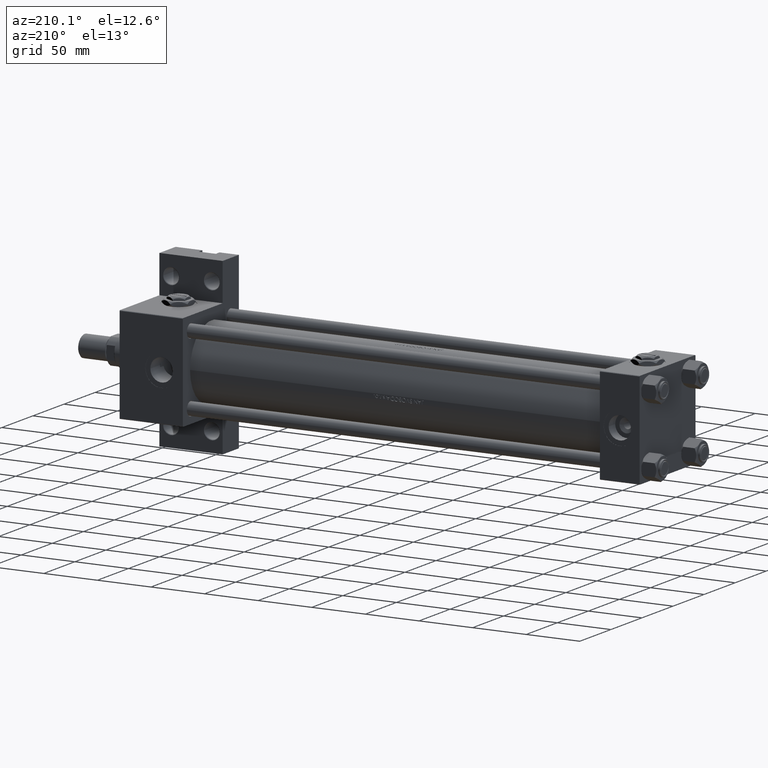
[diagram: clean part render]
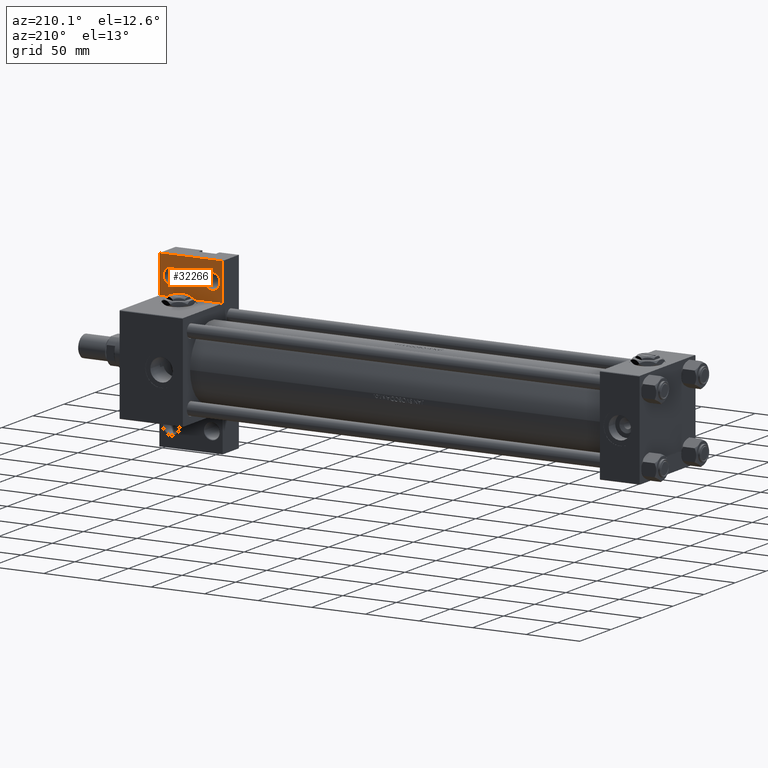
[diagram: same view with one face highlighted and labeled with its STEP entity id]
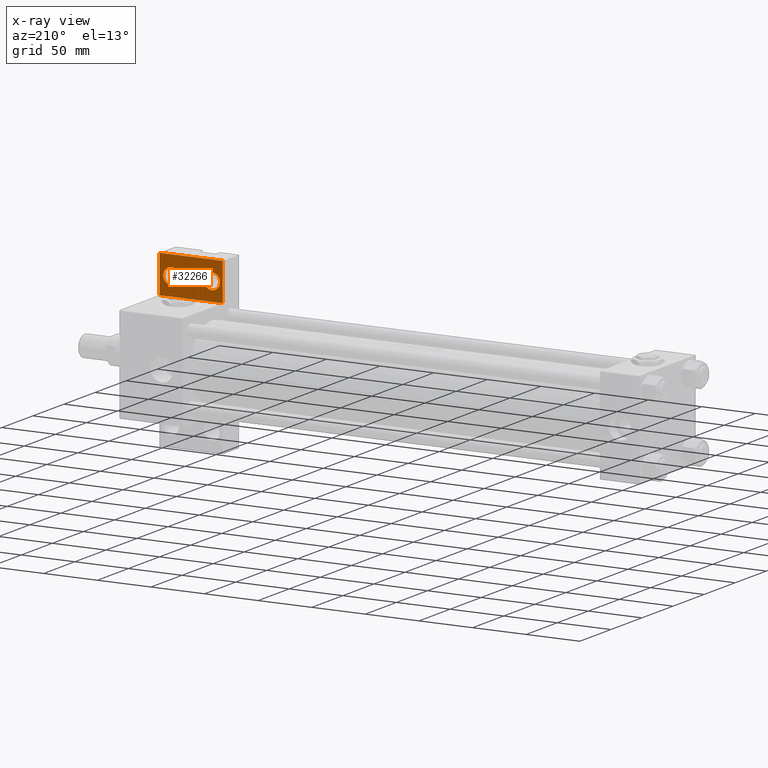
[diagram: x-ray of the same camera — body ghosted, the highlighted face saturated]
A machine part, auxiliary view. The second image highlights one B-rep face of the part: STEP entity #32266.
The next image is the same camera in x-ray: the body ghosted, the highlighted face saturated — about 0% of this face is hidden behind the body in this view.
In plain terms, the highlighted planar face has unit normal (0, -1, 0).
Its self-contained STEP definition (entity closure, byte-faithful):
#1142 = DIRECTION ( 'NONE',  ( -1.000000000000000000, 0.000000000000000000, 0.000000000000000000 ) ) ;
#2783 = CARTESIAN_POINT ( 'NONE',  ( 443.4995000000001255, -62.00000000000004263, -19.00000000000000000 ) ) ;
#6337 = VECTOR ( 'NONE', #31914, 1000.000000000000000 ) ;
#6548 = VERTEX_POINT ( 'NONE', #2783 ) ;
#7110 = LINE ( 'NONE', #40866, #15723 ) ;
#7149 = VERTEX_POINT ( 'NONE', #42166 ) ;
#7151 = CARTESIAN_POINT ( 'NONE',  ( 474.0000000000000000, -62.00000000000000000, -19.00000000000000000 ) ) ;
#8153 = DIRECTION ( 'NONE',  ( -1.000000000000000000, 0.000000000000000000, 0.000000000000000000 ) ) ;
#8537 = ORIENTED_EDGE ( 'NONE', *, *, #11339, .T. ) ;
#9088 = EDGE_CURVE ( 'NONE', #7149, #18389, #26535, .T. ) ;
#9425 = AXIS2_PLACEMENT_3D ( 'NONE', #47783, #13019, #28529 ) ;
#9837 = DIRECTION ( 'NONE',  ( -0.000000000000000000, -1.000000000000000000, -0.000000000000000000 ) ) ;
#10051 = EDGE_CURVE ( 'NONE', #31769, #7149, #10340, .T. ) ;
#10292 = CARTESIAN_POINT ( 'NONE',  ( 436.0000000000000000, -62.00000000000004263, -19.00000000000000000 ) ) ;
#10323 = ORIENTED_EDGE ( 'NONE', *, *, #17102, .T. ) ;
#10340 = LINE ( 'NONE', #25847, #41611 ) ;
#10702 = EDGE_CURVE ( 'NONE', #18389, #35763, #7110, .T. ) ;
#11339 = EDGE_CURVE ( 'NONE', #6548, #28707, #40017, .T. ) ;
#11546 = CARTESIAN_POINT ( 'NONE',  ( 481.4995000000000687, -62.00000000000000000, -19.00000000000000000 ) ) ;
#12018 = FACE_BOUND ( 'NONE', #41086, .T. ) ;
#12561 = CARTESIAN_POINT ( 'NONE',  ( 466.5004999999998745, -62.00000000000000000, -19.00000000000000000 ) ) ;
#12794 = CARTESIAN_POINT ( 'NONE',  ( 436.0000000000000000, -62.00000000000004263, -19.00000000000000000 ) ) ;
#13019 = DIRECTION ( 'NONE',  ( 0.000000000000000000, 0.000000000000000000, -1.000000000000000000 ) ) ;
#15723 = VECTOR ( 'NONE', #29483, 1000.000000000000000 ) ;
#16109 = DIRECTION ( 'NONE',  ( 0.000000000000000000, 0.000000000000000000, -1.000000000000000000 ) ) ;
#16225 = ORIENTED_EDGE ( 'NONE', *, *, #10702, .F. ) ;
#17067 = CIRCLE ( 'NONE', #37314, 7.499500000000103306 ) ;
#17102 = EDGE_CURVE ( 'NONE', #47704, #33093, #39833, .T. ) ;
#17511 = DIRECTION ( 'NONE',  ( 0.000000000000000000, 0.000000000000000000, -1.000000000000000000 ) ) ;
#18389 = VERTEX_POINT ( 'NONE', #38825 ) ;
#18835 = DIRECTION ( 'NONE',  ( 0.000000000000000000, 0.000000000000000000, -1.000000000000000000 ) ) ;
#18975 = EDGE_LOOP ( 'NONE', ( #8537, #48087 ) ) ;
#19916 = EDGE_CURVE ( 'NONE', #33093, #47704, #42341, .T. ) ;
#24199 = FACE_OUTER_BOUND ( 'NONE', #46754, .T. ) ;
#25207 = ORIENTED_EDGE ( 'NONE', *, *, #10051, .F. ) ;
#25361 = AXIS2_PLACEMENT_3D ( 'NONE', #33244, #17511, #40601 ) ;
#25847 = CARTESIAN_POINT ( 'NONE',  ( 485.0000000000000000, -80.00000000000005684, -19.00000000000000000 ) ) ;
#26087 = ORIENTED_EDGE ( 'NONE', *, *, #9088, .F. ) ;
#26535 = LINE ( 'NONE', #27043, #39940 ) ;
#27043 = CARTESIAN_POINT ( 'NONE',  ( 426.0000000000000000, -80.00000000000004263, -19.00000000000000000 ) ) ;
#27619 = LINE ( 'NONE', #31426, #6337 ) ;
#27826 = CARTESIAN_POINT ( 'NONE',  ( 426.0000000000000000, -45.00000000000000000, -19.00000000000000000 ) ) ;
#28529 = DIRECTION ( 'NONE',  ( -1.000000000000000000, 0.000000000000000000, -0.000000000000000000 ) ) ;
#28707 = VERTEX_POINT ( 'NONE', #42210 ) ;
#29483 = DIRECTION ( 'NONE',  ( 0.000000000000000000, 1.000000000000000000, 0.000000000000000000 ) ) ;
#29890 = CARTESIAN_POINT ( 'NONE',  ( 485.0000000000000000, -44.99999999999999289, -18.99999999999997513 ) ) ;
#31152 = AXIS2_PLACEMENT_3D ( 'NONE', #10292, #36689, #44802 ) ;
#31426 = CARTESIAN_POINT ( 'NONE',  ( 426.0000000000000000, -45.00000000000000000, -19.00000000000000000 ) ) ;
#31769 = VERTEX_POINT ( 'NONE', #29890 ) ;
#31914 = DIRECTION ( 'NONE',  ( 1.000000000000000000, 0.000000000000000000, 0.000000000000000000 ) ) ;
#32266 = ADVANCED_FACE ( 'NONE', ( #12018, #47274, #24199 ), #32323, .F. ) ;
#32323 = PLANE ( 'NONE',  #9425 ) ;
#33093 = VERTEX_POINT ( 'NONE', #11546 ) ;
#33244 = CARTESIAN_POINT ( 'NONE',  ( 474.0000000000000000, -62.00000000000000000, -19.00000000000000000 ) ) ;
#35763 = VERTEX_POINT ( 'NONE', #27826 ) ;
#36689 = DIRECTION ( 'NONE',  ( 0.000000000000000000, 0.000000000000000000, -1.000000000000000000 ) ) ;
#37314 = AXIS2_PLACEMENT_3D ( 'NONE', #12794, #16109, #1142 ) ;
#37339 = EDGE_CURVE ( 'NONE', #35763, #31769, #27619, .T. ) ;
#38825 = CARTESIAN_POINT ( 'NONE',  ( 426.0000000000000000, -80.00000000000004263, -19.00000000000000000 ) ) ;
#39598 = ORIENTED_EDGE ( 'NONE', *, *, #19916, .T. ) ;
#39833 = CIRCLE ( 'NONE', #40655, 7.499500000000103306 ) ;
#39940 = VECTOR ( 'NONE', #41988, 1000.000000000000000 ) ;
#40017 = CIRCLE ( 'NONE', #31152, 7.499500000000103306 ) ;
#40601 = DIRECTION ( 'NONE',  ( -1.000000000000000000, 0.000000000000000000, 0.000000000000000000 ) ) ;
#40655 = AXIS2_PLACEMENT_3D ( 'NONE', #7151, #18835, #8153 ) ;
#40866 = CARTESIAN_POINT ( 'NONE',  ( 426.0000000000000000, -80.00000000000004263, -19.00000000000000000 ) ) ;
#41086 = EDGE_LOOP ( 'NONE', ( #39598, #10323 ) ) ;
#41593 = EDGE_CURVE ( 'NONE', #28707, #6548, #17067, .T. ) ;
#41611 = VECTOR ( 'NONE', #9837, 1000.000000000000000 ) ;
#41988 = DIRECTION ( 'NONE',  ( -1.000000000000000000, 2.352167425053297897E-16, -0.000000000000000000 ) ) ;
#42166 = CARTESIAN_POINT ( 'NONE',  ( 485.0000000000000000, -80.00000000000005684, -19.00000000000000000 ) ) ;
#42210 = CARTESIAN_POINT ( 'NONE',  ( 428.5004999999998745, -62.00000000000004263, -19.00000000000000000 ) ) ;
#42341 = CIRCLE ( 'NONE', #25361, 7.499500000000103306 ) ;
#44802 = DIRECTION ( 'NONE',  ( -1.000000000000000000, 0.000000000000000000, 0.000000000000000000 ) ) ;
#45533 = ORIENTED_EDGE ( 'NONE', *, *, #37339, .F. ) ;
#46754 = EDGE_LOOP ( 'NONE', ( #25207, #45533, #16225, #26087 ) ) ;
#47274 = FACE_BOUND ( 'NONE', #18975, .T. ) ;
#47704 = VERTEX_POINT ( 'NONE', #12561 ) ;
#47783 = CARTESIAN_POINT ( 'NONE',  ( 0.000000000000000000, 0.000000000000000000, -19.00000000000000000 ) ) ;
#48087 = ORIENTED_EDGE ( 'NONE', *, *, #41593, .T. ) ;